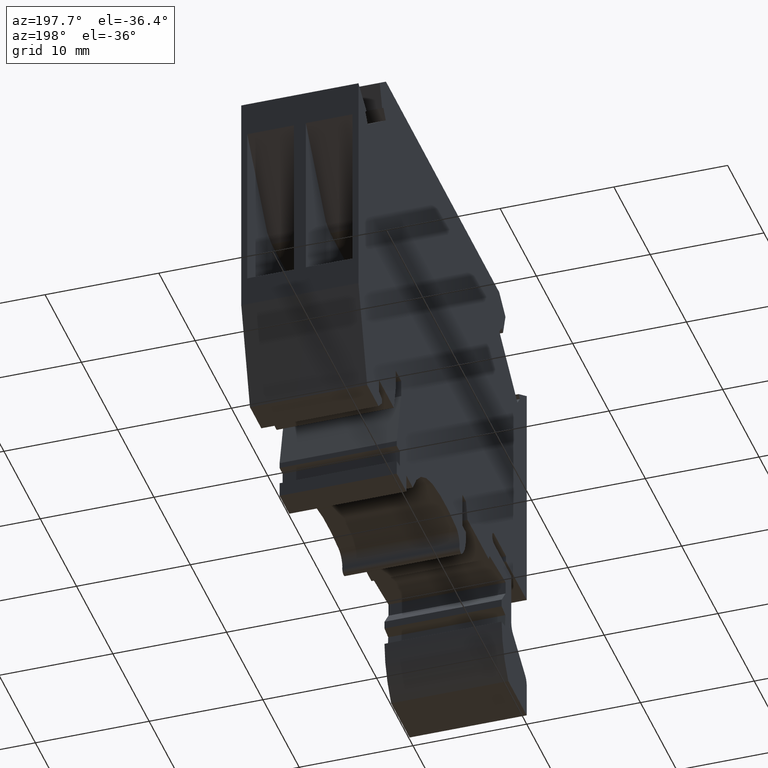
[diagram: clean part render]
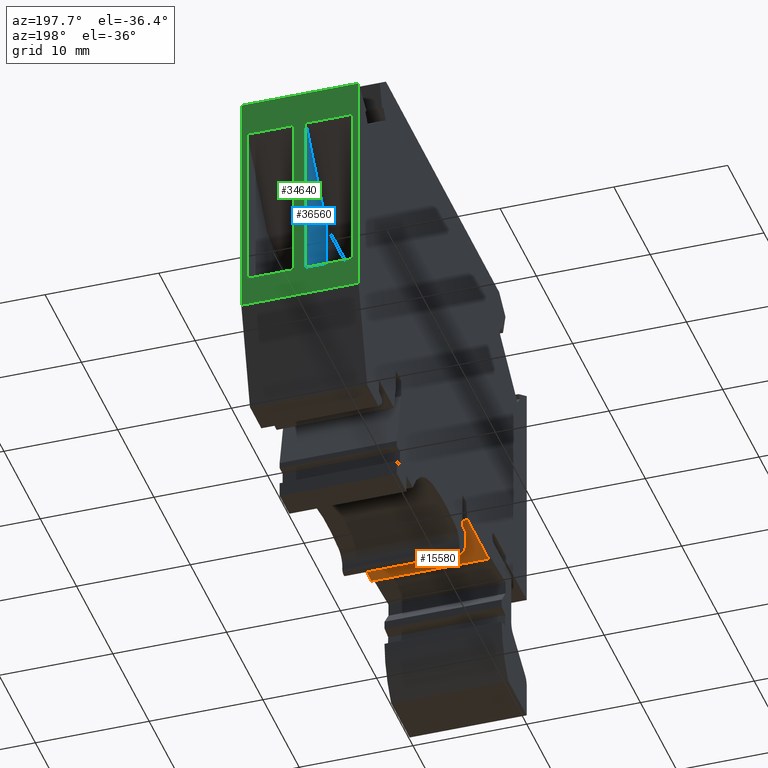
[diagram: same view with three faces highlighted in distinct colors, each labeled with its STEP entity id]
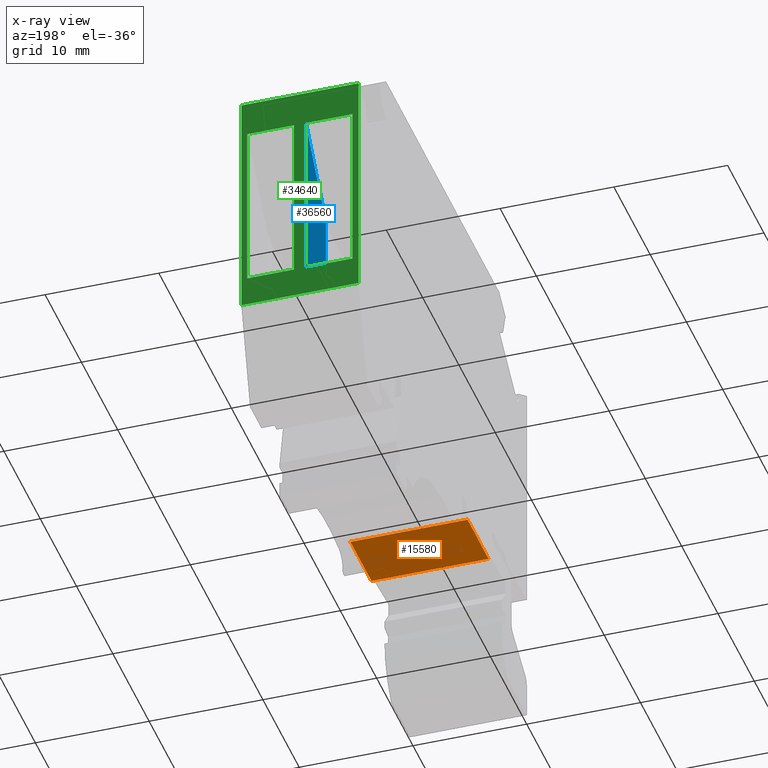
[diagram: x-ray of the same camera — body ghosted, the three highlighted faces saturated]
A machine part, auxiliary view with three faces highlighted in distinct colors.
The next image is the same camera in x-ray (body ghosted, the three faces saturated) — at least one of them is partly hidden behind the body in this view.
Their STEP definitions:

[orange] entity #15580 — the highlighted planar face has unit normal (-0, -0, 1).
#4010=CARTESIAN_POINT('',(-28.5520985338077,13.1295237515582,10.3));
#4020=VERTEX_POINT('',#4010);
#4050=CARTESIAN_POINT('',(0.,13.1295237515583,10.3));
#4060=DIRECTION('',(-1.,-5.25286014369684E-15,0.));
#4070=VECTOR('',#4060,1.);
#4080=LINE('',#4050,#4070);
#4090=CARTESIAN_POINT('',(-34.3520985338076,13.1295237515581,10.3));
#4100=VERTEX_POINT('',#4090);
#4110=EDGE_CURVE('',#4020,#4100,#4080,.T.);
#7350=CARTESIAN_POINT('',(-34.3520985338076,13.1295237515581,
-7.105427357601E-15));
#7360=VERTEX_POINT('',#7350);
#7390=CARTESIAN_POINT('',(0.,13.1295237515583,-7.105427357601E-15));
#7400=DIRECTION('',(-1.,-5.25286014369684E-15,0.));
#7410=VECTOR('',#7400,1.);
#7420=LINE('',#7390,#7410);
#7430=CARTESIAN_POINT('',(-28.5520985338077,13.1295237515582,
-7.105427357601E-15));
#7440=VERTEX_POINT('',#7430);
#7450=EDGE_CURVE('',#7440,#7360,#7420,.T.);
#15260=CARTESIAN_POINT('',(-28.5520985338077,13.1295237515582,5.15));
#15270=DIRECTION('',(0.,0.,1.));
#15280=VECTOR('',#15270,1.);
#15290=LINE('',#15260,#15280);
#15300=EDGE_CURVE('',#7440,#4020,#15290,.T.);
#15420=CARTESIAN_POINT('',(-29.7798217145742,13.1295237515582,5.15));
#15430=DIRECTION('',(-5.25286014369684E-15,1.,0.));
#15440=DIRECTION('',(1.,5.25286014369684E-15,0.));
#15450=AXIS2_PLACEMENT_3D('',#15420,#15430,#15440);
#15460=PLANE('',#15450);
#15470=ORIENTED_EDGE('',*,*,#4110,.T.);
#15480=ORIENTED_EDGE('',*,*,#15300,.T.);
#15490=ORIENTED_EDGE('',*,*,#7450,.F.);
#15500=CARTESIAN_POINT('',(-34.3520985338078,13.1295237515581,5.15));
#15510=DIRECTION('',(0.,0.,1.));
#15520=VECTOR('',#15510,1.);
#15530=LINE('',#15500,#15520);
#15540=EDGE_CURVE('',#7360,#4100,#15530,.T.);
#15550=ORIENTED_EDGE('',*,*,#15540,.F.);
#15560=EDGE_LOOP('',(#15550,#15490,#15480,#15470));
#15570=FACE_OUTER_BOUND('',#15560,.T.);
#15580=ADVANCED_FACE('',(#15570),#15460,.F.);

[blue] entity #36560 — the highlighted planar face has unit normal (1, -0, 0).
#33990=CARTESIAN_POINT('',(1.49790146619231,34.3295237515583,4.625));
#34000=VERTEX_POINT('',#33990);
#34030=CARTESIAN_POINT('',(1.49790146619231,10.9158644389662,4.625));
#34040=DIRECTION('',(0.,1.,0.));
#34050=VECTOR('',#34040,1.);
#34060=LINE('',#34030,#34050);
#34070=CARTESIAN_POINT('',(1.49790146619231,19.3295237515583,4.625));
#34080=VERTEX_POINT('',#34070);
#34090=EDGE_CURVE('',#34080,#34000,#34060,.T.);
#34810=CARTESIAN_POINT('',(-4.02565782276799,27.9338235222359,
4.62500000000001));
#34820=VERTEX_POINT('',#34810);
#34870=CARTESIAN_POINT('',(-19.9165433974443,9.53385075155829,4.625));
#34880=DIRECTION('',(-0.653619870346096,-0.756823007769156,0.));
#34890=VECTOR('',#34880,1.);
#34900=LINE('',#34870,#34890);
#34910=EDGE_CURVE('',#34000,#34820,#34900,.T.);
#36140=CARTESIAN_POINT('',(-4.02565782276799,9.53385075155829,
4.62500000000001));
#36150=DIRECTION('',(0.,1.,0.));
#36160=VECTOR('',#36150,1.);
#36170=LINE('',#36140,#36160);
#36180=CARTESIAN_POINT('',(-4.02565782276799,22.1919350430033,
4.62500000000001));
#36190=VERTEX_POINT('',#36180);
#36200=EDGE_CURVE('',#36190,#34820,#36170,.T.);
#36400=CARTESIAN_POINT('',(1.4979014661923,34.3295237515583,4.625));
#36410=DIRECTION('',(0.,-0.,1.));
#36420=DIRECTION('',(0.,1.,0.));
#36430=AXIS2_PLACEMENT_3D('',#36400,#36410,#36420);
#36440=PLANE('',#36430);
#36450=CARTESIAN_POINT('',(13.4527094661923,13.1343196058094,4.625));
#36460=DIRECTION('',(0.887863315807394,-0.460107305357674,0.));
#36470=VECTOR('',#36460,1.);
#36480=LINE('',#36450,#36470);
#36490=EDGE_CURVE('',#36190,#34080,#36480,.T.);
#36500=ORIENTED_EDGE('',*,*,#36490,.F.);
#36510=ORIENTED_EDGE('',*,*,#34090,.F.);
#36520=ORIENTED_EDGE('',*,*,#34910,.F.);
#36530=ORIENTED_EDGE('',*,*,#36200,.T.);
#36540=EDGE_LOOP('',(#36530,#36520,#36510,#36500));
#36550=FACE_OUTER_BOUND('',#36540,.T.);
#36560=ADVANCED_FACE('',(#36550),#36440,.F.);

[green] entity #34640 — the highlighted planar face has unit normal (0, -1, -0).
#1560=CARTESIAN_POINT('',(1.49790146619231,37.4391457022167,10.3));
#1570=VERTEX_POINT('',#1560);
#1600=CARTESIAN_POINT('',(1.49790146619231,8.88178419700125E-16,10.3));
#1610=DIRECTION('',(0.,-1.,0.));
#1620=VECTOR('',#1610,1.);
#1630=LINE('',#1600,#1620);
#1640=CARTESIAN_POINT('',(1.49790146619231,16.6504165609533,10.3));
#1650=VERTEX_POINT('',#1640);
#1660=EDGE_CURVE('',#1570,#1650,#1630,.T.);
#9800=CARTESIAN_POINT('',(1.49790146619231,16.6504165609533,
-7.105427357601E-15));
#9810=VERTEX_POINT('',#9800);
#9840=CARTESIAN_POINT('',(1.49790146619231,1.77635683940025E-15,
-7.105427357601E-15));
#9850=DIRECTION('',(0.,-1.,0.));
#9860=VECTOR('',#9850,1.);
#9870=LINE('',#9840,#9860);
#9880=CARTESIAN_POINT('',(1.49790146619231,37.4391457022167,
-7.105427357601E-15));
#9890=VERTEX_POINT('',#9880);
#9900=EDGE_CURVE('',#9890,#9810,#9870,.T.);
#33640=CARTESIAN_POINT('',(1.49790146619231,37.4391457022167,
-5.14999999999999));
#33650=DIRECTION('',(0.,0.,-1.));
#33660=VECTOR('',#33650,1.);
#33670=LINE('',#33640,#33660);
#33680=EDGE_CURVE('',#1570,#9890,#33670,.T.);
#33800=CARTESIAN_POINT('',(1.49790146619231,36.0815113279068,5.15));
#33810=DIRECTION('',(-1.,0.,0.));
#33820=DIRECTION('',(0.,1.,0.));
#33830=AXIS2_PLACEMENT_3D('',#33800,#33810,#33820);
#33840=PLANE('',#33830);
#33850=CARTESIAN_POINT('',(1.49790146619231,10.9158644389662,
0.525000000000004));
#33860=DIRECTION('',(0.,-1.,0.));
#33870=VECTOR('',#33860,1.);
#33880=LINE('',#33850,#33870);
#33890=CARTESIAN_POINT('',(1.49790146619231,34.3295237515583,
0.525000000000004));
#33900=VERTEX_POINT('',#33890);
#33910=CARTESIAN_POINT('',(1.49790146619231,19.3295237515583,
0.525000000000004));
#33920=VERTEX_POINT('',#33910);
#33930=EDGE_CURVE('',#33900,#33920,#33880,.T.);
#33940=ORIENTED_EDGE('',*,*,#33930,.T.);
#33950=CARTESIAN_POINT('',(1.49790146619231,34.3295237515583,5.15));
#33960=DIRECTION('',(0.,0.,1.));
#33970=VECTOR('',#33960,1.);
#33980=LINE('',#33950,#33970);
#33990=CARTESIAN_POINT('',(1.49790146619231,34.3295237515583,4.625));
#34000=VERTEX_POINT('',#33990);
#34010=EDGE_CURVE('',#33900,#34000,#33980,.T.);
#34020=ORIENTED_EDGE('',*,*,#34010,.F.);
#34030=CARTESIAN_POINT('',(1.49790146619231,10.9158644389662,4.625));
#34040=DIRECTION('',(0.,1.,0.));
#34050=VECTOR('',#34040,1.);
#34060=LINE('',#34030,#34050);
#34070=CARTESIAN_POINT('',(1.49790146619231,19.3295237515583,4.625));
#34080=VERTEX_POINT('',#34070);
#34090=EDGE_CURVE('',#34080,#34000,#34060,.T.);
#34100=ORIENTED_EDGE('',*,*,#34090,.T.);
#34110=CARTESIAN_POINT('',(1.49790146619231,19.3295237515583,5.15));
#34120=DIRECTION('',(0.,0.,-1.));
#34130=VECTOR('',#34120,1.);
#34140=LINE('',#34110,#34130);
#34150=EDGE_CURVE('',#34080,#33920,#34140,.T.);
#34160=ORIENTED_EDGE('',*,*,#34150,.F.);
#34170=EDGE_LOOP('',(#34160,#34100,#34020,#33940));
#34180=FACE_BOUND('',#34170,.T.);
#34190=ORIENTED_EDGE('',*,*,#1660,.T.);
#34200=ORIENTED_EDGE('',*,*,#33680,.F.);
#34210=ORIENTED_EDGE('',*,*,#9900,.F.);
#34220=CARTESIAN_POINT('',(1.49790146619231,16.6504165609533,5.15));
#34230=DIRECTION('',(0.,0.,1.));
#34240=VECTOR('',#34230,1.);
#34250=LINE('',#34220,#34240);
#34260=EDGE_CURVE('',#9810,#1650,#34250,.T.);
#34270=ORIENTED_EDGE('',*,*,#34260,.F.);
#34280=EDGE_LOOP('',(#34270,#34210,#34200,#34190));
#34290=FACE_OUTER_BOUND('',#34280,.T.);
#34300=CARTESIAN_POINT('',(1.49790146619231,10.9158644389662,5.675));
#34310=DIRECTION('',(0.,-1.,0.));
#34320=VECTOR('',#34310,1.);
#34330=LINE('',#34300,#34320);
#34340=CARTESIAN_POINT('',(1.49790146619231,34.3295237515583,5.675));
#34350=VERTEX_POINT('',#34340);
#34360=CARTESIAN_POINT('',(1.49790146619231,19.3295237515583,5.675));
#34370=VERTEX_POINT('',#34360);
#34380=EDGE_CURVE('',#34350,#34370,#34330,.T.);
#34390=ORIENTED_EDGE('',*,*,#34380,.T.);
#34400=CARTESIAN_POINT('',(1.49790146619231,34.3295237515583,10.3));
#34410=DIRECTION('',(0.,0.,1.));
#34420=VECTOR('',#34410,1.);
#34430=LINE('',#34400,#34420);
#34440=CARTESIAN_POINT('',(1.49790146619231,34.3295237515583,9.775));
#34450=VERTEX_POINT('',#34440);
#34460=EDGE_CURVE('',#34350,#34450,#34430,.T.);
#34470=ORIENTED_EDGE('',*,*,#34460,.F.);
#34480=CARTESIAN_POINT('',(1.49790146619231,10.9158644389662,9.775));
#34490=DIRECTION('',(0.,1.,0.));
#34500=VECTOR('',#34490,1.);
#34510=LINE('',#34480,#34500);
#34520=CARTESIAN_POINT('',(1.49790146619231,19.3295237515583,9.775));
#34530=VERTEX_POINT('',#34520);
#34540=EDGE_CURVE('',#34530,#34450,#34510,.T.);
#34550=ORIENTED_EDGE('',*,*,#34540,.T.);
#34560=CARTESIAN_POINT('',(1.49790146619231,19.3295237515583,10.3));
#34570=DIRECTION('',(0.,0.,-1.));
#34580=VECTOR('',#34570,1.);
#34590=LINE('',#34560,#34580);
#34600=EDGE_CURVE('',#34530,#34370,#34590,.T.);
#34610=ORIENTED_EDGE('',*,*,#34600,.F.);
#34620=EDGE_LOOP('',(#34610,#34550,#34470,#34390));
#34630=FACE_BOUND('',#34620,.T.);
#34640=ADVANCED_FACE('',(#34180,#34290,#34630),#33840,.F.);